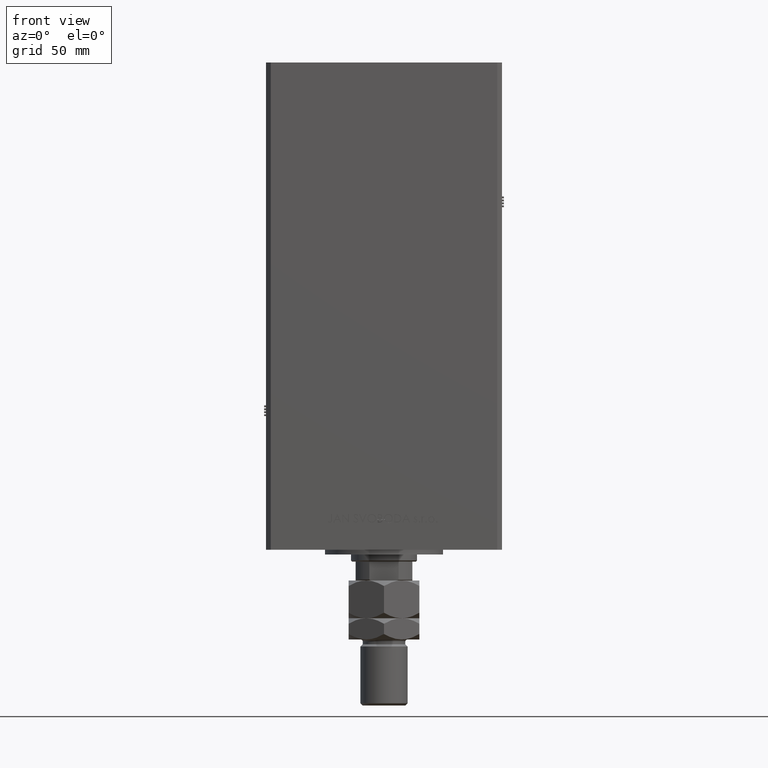
[diagram: clean part render]
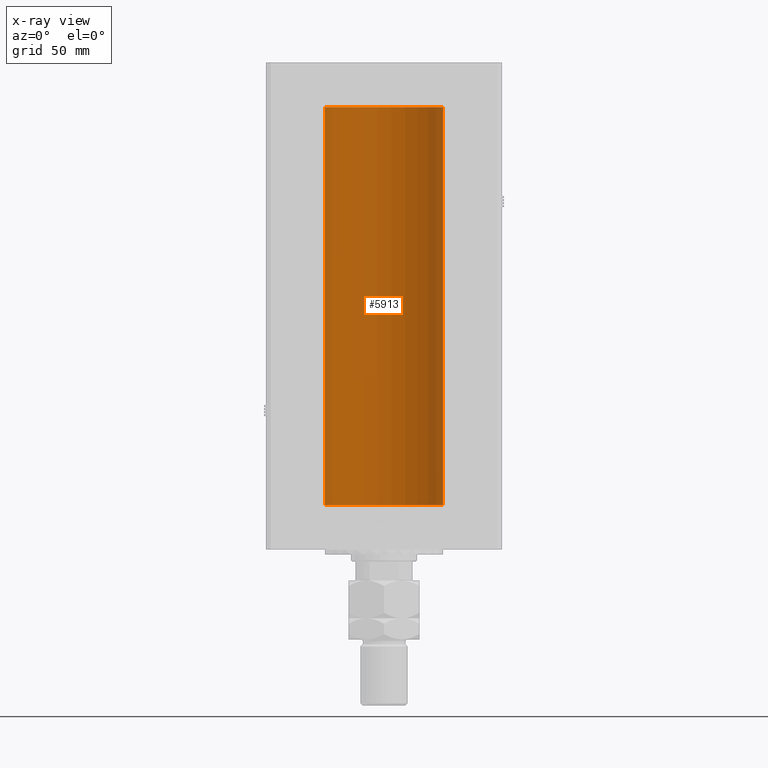
[diagram: x-ray — body ghosted, one internal face saturated and labeled with its STEP entity id]
A machine part, front view, then the same camera in x-ray: the body is ghosted and one INTERNAL B-rep face — a face not visible from any outside direction — is saturated and labeled: STEP entity #5913.
In plain terms, the highlighted cylindrical surface (partial cylindrical patch) has radius 25 mm, axis along (-0, -0, -1).
Its self-contained STEP definition (entity closure, byte-faithful):
#393 = ORIENTED_EDGE ( 'NONE', *, *, #29080, .F. ) ;
#2306 = DIRECTION ( 'NONE',  ( -1.000000000000000000, 0.000000000000000000, 0.000000000000000000 ) ) ;
#2695 = AXIS2_PLACEMENT_3D ( 'NONE', #39545, #51796, #2306 ) ;
#2952 = CARTESIAN_POINT ( 'NONE',  ( 25.00000000000000000, 3.061616997868383043E-15, 168.5000000000000000 ) ) ;
#3581 = DIRECTION ( 'NONE',  ( -0.000000000000000000, 0.000000000000000000, 1.000000000000000000 ) ) ;
#4999 = EDGE_CURVE ( 'NONE', #17807, #6629, #32150, .T. ) ;
#5803 = CARTESIAN_POINT ( 'NONE',  ( -25.00000000000000000, 0.000000000000000000, 0.000000000000000000 ) ) ;
#5913 = ADVANCED_FACE ( 'NONE', ( #15094 ), #14267, .F. ) ;
#6269 = EDGE_CURVE ( 'NONE', #45447, #47405, #8735, .T. ) ;
#6629 = VERTEX_POINT ( 'NONE', #22458 ) ;
#7187 = CARTESIAN_POINT ( 'NONE',  ( 0.000000000000000000, 0.000000000000000000, 168.5000000000000000 ) ) ;
#8150 = ORIENTED_EDGE ( 'NONE', *, *, #13126, .T. ) ;
#8735 = CIRCLE ( 'NONE', #30426, 25.00000000000000000 ) ;
#11545 = VECTOR ( 'NONE', #19532, 1000.000000000000000 ) ;
#12275 = CARTESIAN_POINT ( 'NONE',  ( -25.00000000000000000, 0.000000000000000000, 168.5000000000000000 ) ) ;
#13126 = EDGE_CURVE ( 'NONE', #6629, #47405, #32926, .T. ) ;
#14267 = CYLINDRICAL_SURFACE ( 'NONE', #2695, 25.00000000000000000 ) ;
#15094 = FACE_OUTER_BOUND ( 'NONE', #35815, .T. ) ;
#17807 = VERTEX_POINT ( 'NONE', #44959 ) ;
#19532 = DIRECTION ( 'NONE',  ( -0.000000000000000000, -0.000000000000000000, -1.000000000000000000 ) ) ;
#22458 = CARTESIAN_POINT ( 'NONE',  ( -25.00000000000000000, 0.000000000000000000, 168.5000000000000000 ) ) ;
#23876 = LINE ( 'NONE', #2952, #11545 ) ;
#24764 = DIRECTION ( 'NONE',  ( 1.000000000000000000, 0.000000000000000000, 0.000000000000000000 ) ) ;
#25789 = VECTOR ( 'NONE', #49262, 1000.000000000000000 ) ;
#29080 = EDGE_CURVE ( 'NONE', #17807, #45447, #23876, .T. ) ;
#29436 = ORIENTED_EDGE ( 'NONE', *, *, #4999, .T. ) ;
#29538 = AXIS2_PLACEMENT_3D ( 'NONE', #7187, #40354, #49045 ) ;
#30426 = AXIS2_PLACEMENT_3D ( 'NONE', #31856, #3581, #24764 ) ;
#31856 = CARTESIAN_POINT ( 'NONE',  ( 0.000000000000000000, 0.000000000000000000, 0.000000000000000000 ) ) ;
#32150 = CIRCLE ( 'NONE', #29538, 25.00000000000000000 ) ;
#32796 = ORIENTED_EDGE ( 'NONE', *, *, #6269, .F. ) ;
#32926 = LINE ( 'NONE', #12275, #25789 ) ;
#35815 = EDGE_LOOP ( 'NONE', ( #393, #29436, #8150, #32796 ) ) ;
#39545 = CARTESIAN_POINT ( 'NONE',  ( 0.000000000000000000, 0.000000000000000000, 168.5000000000000000 ) ) ;
#40354 = DIRECTION ( 'NONE',  ( -0.000000000000000000, 0.000000000000000000, 1.000000000000000000 ) ) ;
#44959 = CARTESIAN_POINT ( 'NONE',  ( 25.00000000000000000, 3.061616997868383043E-15, 168.5000000000000000 ) ) ;
#45447 = VERTEX_POINT ( 'NONE', #52701 ) ;
#47405 = VERTEX_POINT ( 'NONE', #5803 ) ;
#49045 = DIRECTION ( 'NONE',  ( 1.000000000000000000, 0.000000000000000000, 0.000000000000000000 ) ) ;
#49262 = DIRECTION ( 'NONE',  ( -0.000000000000000000, -0.000000000000000000, -1.000000000000000000 ) ) ;
#51796 = DIRECTION ( 'NONE',  ( -0.000000000000000000, -0.000000000000000000, -1.000000000000000000 ) ) ;
#52701 = CARTESIAN_POINT ( 'NONE',  ( 25.00000000000000000, 3.061616997868383043E-15, 0.000000000000000000 ) ) ;